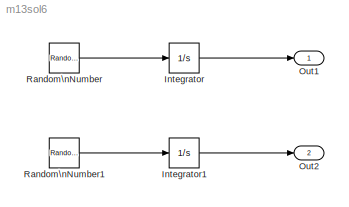
MODEL m13sol6
KIND model
BLOCK [Integrator] Integrator
  Ports = [1, 1]
  SID = 5
BLOCK [Integrator] Integrator1
  Ports = [1, 1]
  SID = 6
BLOCK [Outport] Out1
  IconDisplay = Port number
  SID = 3
BLOCK [Outport] Out2
  IconDisplay = Port number
  Port = 2
  SID = 4
BLOCK [RandomNumber] Random\nNumber
  SID = 1
  SampleTime = 0.1
  Seed = seed61
BLOCK [RandomNumber] Random\nNumber1
  SID = 2
  SampleTime = 0.1
  Seed = seed62
LINE Integrator1:1 -> Out2:1
LINE Integrator:1 -> Out1:1
LINE Random\nNumber1:1 -> Integrator1:1
LINE Random\nNumber:1 -> Integrator:1
